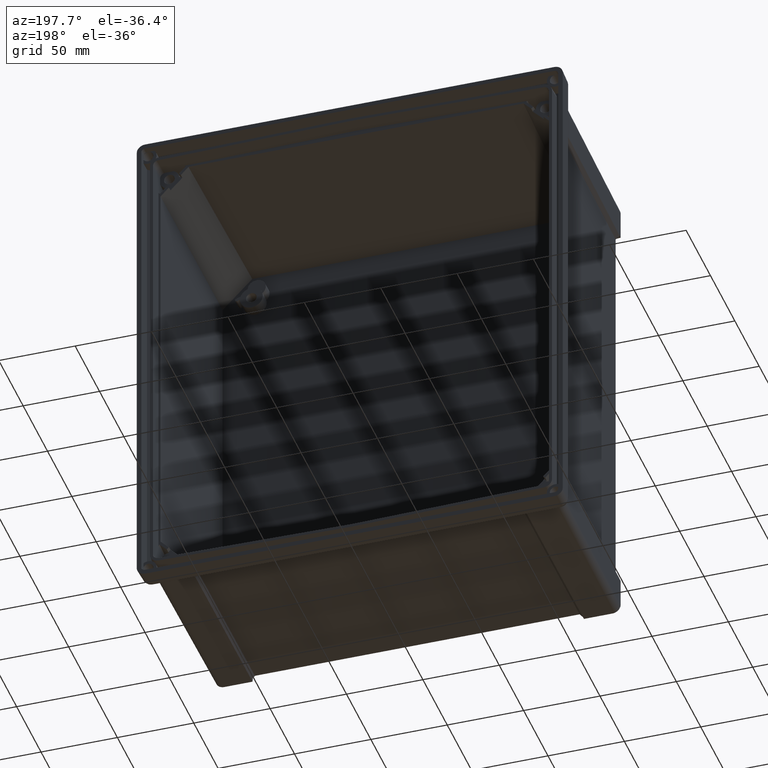
[diagram: clean part render]
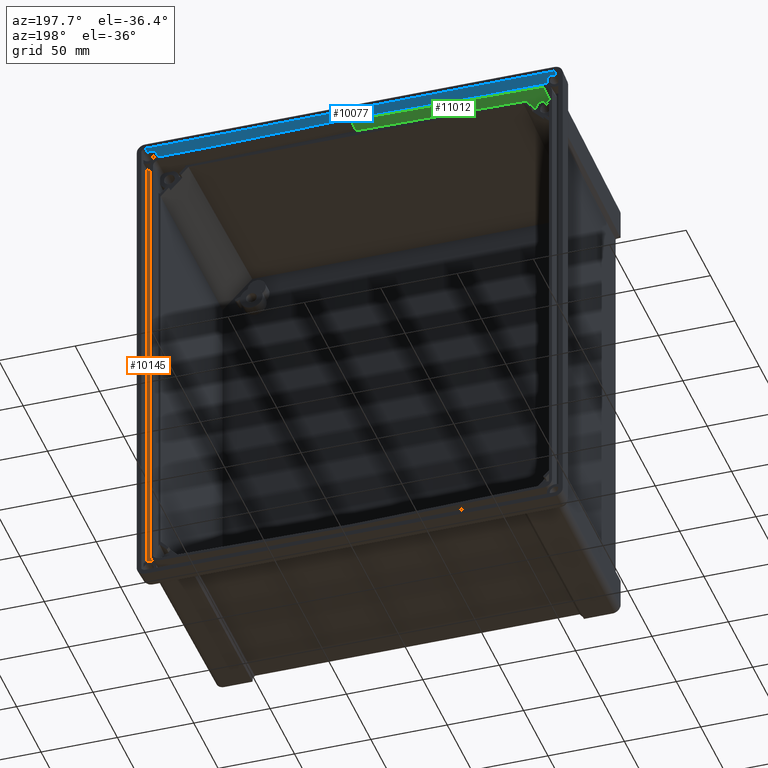
[diagram: same view with three faces highlighted in distinct colors, each labeled with its STEP entity id]
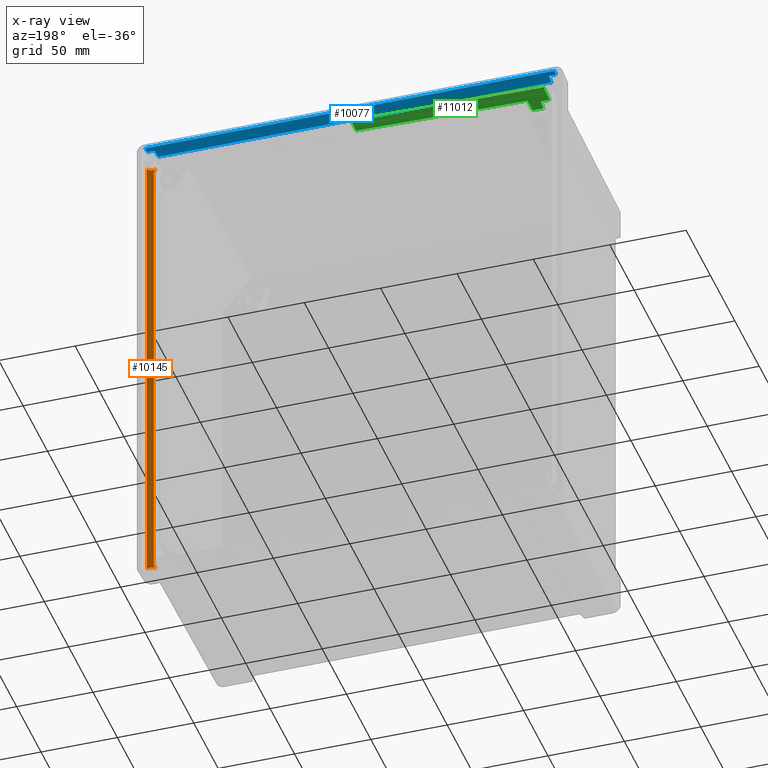
[diagram: x-ray of the same camera — body ghosted, the three highlighted faces saturated]
A machine part, auxiliary view with three faces highlighted in distinct colors.
The next image is the same camera in x-ray (body ghosted, the three faces saturated) — at least one of them is partly hidden behind the body in this view.
Their STEP definitions:

[orange] entity #10145 — the highlighted planar face has unit normal (-0.2079, 0.9781, 0).
#2936=DIRECTION('',(9.366707391512E-13,0.E0,-1.E0));
#2937=VECTOR('',#2936,3.093199070103E2);
#2938=CARTESIAN_POINT('',(1.360941774942E2,-1.052288663697E1,1.546599535051E2));
#2939=LINE('',#2938,#2937);
#3038=CARTESIAN_POINT('',(1.332499999998E2,-1.112743522689E1,1.538755901582E2));
#3039=CARTESIAN_POINT('',(1.329491776095E2,-1.119137699984E1,1.538744740504E2));
#3040=CARTESIAN_POINT('',(1.323418802507E2,-1.132046203698E1,1.539205545499E2));
#3041=CARTESIAN_POINT('',(1.314216868261E2,-1.151605518773E1,1.541436615417E2));
#3042=CARTESIAN_POINT('',(1.307863569804E2,-1.165109871567E1,1.544206904514E2));
#3043=CARTESIAN_POINT('',(1.304697275397E2,-1.171840038090E1,1.545989579891E2));
#3077=CARTESIAN_POINT('',(1.304697275397E2,-1.171840038090E1,1.545989579891E2));
#3079=DIRECTION('',(3.171837905269E-13,-4.137254880999E-12,-1.E0));
#3080=VECTOR('',#3079,3.017048743039E2);
#3081=CARTESIAN_POINT('',(1.319229755109E2,-1.140950298912E1,1.508524371519E2));
#3082=LINE('',#3081,#3080);
#3091=CARTESIAN_POINT('',(1.319229755110E2,-1.140950299037E1,
-1.508524371520E2));
#3092=CARTESIAN_POINT('',(1.319229755110E2,-1.140950299037E1,
-1.513157368230E2));
#3093=CARTESIAN_POINT('',(1.318116655605E2,-1.143316264816E1,
-1.522117758520E2));
#3094=CARTESIAN_POINT('',(1.313095384883E2,-1.153989305259E1,
-1.535110639774E2));
#3095=CARTESIAN_POINT('',(1.307851598199E2,-1.165135318074E1,
-1.542536331589E2));
#3096=CARTESIAN_POINT('',(1.304697275400E2,-1.171840038161E1,
-1.545989579892E2));
#3098=CARTESIAN_POINT('',(1.304697275400E2,-1.171840038161E1,
-1.545989579892E2));
#3099=CARTESIAN_POINT('',(1.307526327356E2,-1.165826702595E1,
-1.544396777515E2));
#3100=CARTESIAN_POINT('',(1.313363230711E2,-1.153419981363E1,
-1.541741881426E2));
#3101=CARTESIAN_POINT('',(1.322815708426E2,-1.133328119751E1,
-1.539277117665E2));
#3102=CARTESIAN_POINT('',(1.329233227406E2,-1.119687262188E1,
-1.538743781240E2));
#3103=CARTESIAN_POINT('',(1.332499999998E2,-1.112743522689E1,
-1.538755901582E2));
#3105=CARTESIAN_POINT('',(1.360941774942E2,-1.052288663697E1,1.546599535051E2));
#3106=CARTESIAN_POINT('',(1.358069983190E2,-1.058392845503E1,1.544899613237E2));
#3107=CARTESIAN_POINT('',(1.352128106350E2,-1.071022694624E1,1.542057104901E2));
#3108=CARTESIAN_POINT('',(1.342448122597E2,-1.091598135203E1,1.539381362741E2));
#3109=CARTESIAN_POINT('',(1.335859516668E2,-1.105602649566E1,1.538768366022E2));
#3110=CARTESIAN_POINT('',(1.332499999998E2,-1.112743522689E1,1.538755901582E2));
#3112=CARTESIAN_POINT('',(1.304697275397E2,-1.171840038090E1,1.545989579891E2));
#3113=CARTESIAN_POINT('',(1.307855659332E2,-1.165126685795E1,1.542531885590E2));
#3114=CARTESIAN_POINT('',(1.313103379443E2,-1.153972312315E1,1.535099004338E2));
#3115=CARTESIAN_POINT('',(1.318124160309E2,-1.143300313124E1,1.522087638216E2));
#3116=CARTESIAN_POINT('',(1.319229755109E2,-1.140950298913E1,1.513144336089E2));
#3117=CARTESIAN_POINT('',(1.319229755109E2,-1.140950298912E1,1.508524371519E2));
#3243=CARTESIAN_POINT('',(1.360941774945E2,-1.052288663697E1,
-1.546599535053E2));
#3250=CARTESIAN_POINT('',(1.332499999998E2,-1.112743522689E1,
-1.538755901582E2));
#3251=CARTESIAN_POINT('',(1.335570718479E2,-1.106216509067E1,
-1.538767294527E2));
#3252=CARTESIAN_POINT('',(1.341778721861E2,-1.093020990391E1,
-1.539267662754E2));
#3253=CARTESIAN_POINT('',(1.351758937890E2,-1.071807386407E1,
-1.541895987669E2));
#3254=CARTESIAN_POINT('',(1.357922195035E2,-1.058706978931E1,
-1.544812131855E2));
#3255=CARTESIAN_POINT('',(1.360941774945E2,-1.052288663697E1,
-1.546599535053E2));
#5077=VERTEX_POINT('',#3077);
#5078=VERTEX_POINT('',#3038);
#5112=VERTEX_POINT('',#3243);
#5113=VERTEX_POINT('',#3250);
#5393=VERTEX_POINT('',#3091);
#5394=VERTEX_POINT('',#3096);
#5395=CARTESIAN_POINT('',(1.319229755109E2,-1.140950298912E1,1.508524371519E2));
#5396=VERTEX_POINT('',#5395);
#5397=VERTEX_POINT('',#3105);
#10126=CARTESIAN_POINT('',(1.332819525177E2,-1.112064350860E1,0.E0));
#10127=DIRECTION('',(-2.079116908133E-1,9.781476007348E-1,0.E0));
#10128=DIRECTION('',(9.781476007348E-1,2.079116908133E-1,0.E0));
#10129=AXIS2_PLACEMENT_3D('',#10126,#10127,#10128);
#10130=PLANE('',#10129);
#10132=ORIENTED_EDGE('',*,*,#10131,.T.);
#10134=ORIENTED_EDGE('',*,*,#10133,.T.);
#10136=ORIENTED_EDGE('',*,*,#10135,.T.);
#10137=ORIENTED_EDGE('',*,*,#10006,.F.);
#10139=ORIENTED_EDGE('',*,*,#10138,.T.);
#10140=ORIENTED_EDGE('',*,*,#10089,.T.);
#10141=ORIENTED_EDGE('',*,*,#10104,.T.);
#10142=ORIENTED_EDGE('',*,*,#10117,.T.);
#10143=EDGE_LOOP('',(#10132,#10134,#10136,#10137,#10139,#10140,#10141,#10142));
#10144=FACE_OUTER_BOUND('',#10143,.F.);
#10145=ADVANCED_FACE('',(#10144),#10130,.T.);
#3044=B_SPLINE_CURVE_WITH_KNOTS('',3,(#3038,#3039,#3040,#3041,#3042,#3043),
.UNSPECIFIED.,.F.,.F.,(4,1,1,4),(0.E0,3.333333333333E-1,6.666666666667E-1,1.E0),
.UNSPECIFIED.);
#3097=B_SPLINE_CURVE_WITH_KNOTS('',3,(#3091,#3092,#3093,#3094,#3095,#3096),
.UNSPECIFIED.,.F.,.F.,(4,1,1,4),(0.E0,3.333333333333E-1,6.666666666667E-1,1.E0),
.UNSPECIFIED.);
#3104=B_SPLINE_CURVE_WITH_KNOTS('',3,(#3098,#3099,#3100,#3101,#3102,#3103),
.UNSPECIFIED.,.F.,.F.,(4,1,1,4),(0.E0,3.333333333333E-1,6.666666666667E-1,1.E0),
.UNSPECIFIED.);
#3111=B_SPLINE_CURVE_WITH_KNOTS('',3,(#3105,#3106,#3107,#3108,#3109,#3110),
.UNSPECIFIED.,.F.,.F.,(4,1,1,4),(0.E0,3.333333333333E-1,6.666666666667E-1,1.E0),
.UNSPECIFIED.);
#3118=B_SPLINE_CURVE_WITH_KNOTS('',3,(#3112,#3113,#3114,#3115,#3116,#3117),
.UNSPECIFIED.,.F.,.F.,(4,1,1,4),(0.E0,3.333333333333E-1,6.666666666667E-1,1.E0),
.UNSPECIFIED.);
#3256=B_SPLINE_CURVE_WITH_KNOTS('',3,(#3250,#3251,#3252,#3253,#3254,#3255),
.UNSPECIFIED.,.F.,.F.,(4,1,1,4),(0.E0,3.333333333333E-1,6.666666666667E-1,1.E0),
.UNSPECIFIED.);
#10006=EDGE_CURVE('',#5397,#5112,#2939,.T.);
#10089=EDGE_CURVE('',#5078,#5077,#3044,.T.);
#10104=EDGE_CURVE('',#5077,#5396,#3118,.T.);
#10117=EDGE_CURVE('',#5396,#5393,#3082,.T.);
#10131=EDGE_CURVE('',#5393,#5394,#3097,.T.);
#10133=EDGE_CURVE('',#5394,#5113,#3104,.T.);
#10135=EDGE_CURVE('',#5113,#5112,#3256,.T.);
#10138=EDGE_CURVE('',#5397,#5078,#3111,.T.);

[blue] entity #10077 — the highlighted planar face has unit normal (0, -0.0349, 0.9994).
#729=CARTESIAN_POINT('',(-1.287784281970E2,-1.052288663671E1,1.628941774939E2));
#762=DIRECTION('',(1.E0,-8.734373090909E-11,-5.411139274909E-11));
#763=VECTOR('',#762,4.712493322654E0);
#764=CARTESIAN_POINT('',(-1.338234846081E2,-4.000000000482E0,1.631219617147E2));
#765=LINE('',#764,#763);
#858=CARTESIAN_POINT('',(1.339631676742E2,-3.270968681098E-10,
1.632616448406E2));
#2952=CARTESIAN_POINT('',(1.338234846467E2,-4.E0,1.631219617148E2));
#2988=DIRECTION('',(3.487825977790E-2,9.987827656445E-1,3.487827470408E-2));
#2989=VECTOR('',#2988,4.004874871438E0);
#2990=CARTESIAN_POINT('',(1.338234846081E2,-4.000000000482E0,1.631219617147E2));
#2991=LINE('',#2990,#2989);
#2992=DIRECTION('',(-1.E0,0.E0,0.E0));
#2993=VECTOR('',#2992,2.679263353485E2);
#2994=CARTESIAN_POINT('',(1.339631676742E2,-3.270968681098E-10,
1.632616448406E2));
#2995=LINE('',#2994,#2993);
#2996=DIRECTION('',(3.487825977765E-2,-9.987827656445E-1,-3.487827470373E-2));
#2997=VECTOR('',#2996,4.004874871438E0);
#2998=CARTESIAN_POINT('',(-1.339631676742E2,-3.270381003044E-10,
1.632616448406E2));
#2999=LINE('',#2998,#2997);
#3000=CARTESIAN_POINT('',(-1.291109912854E2,-4.000000000894E0,
1.631219617144E2));
#3001=CARTESIAN_POINT('',(-1.290733587473E2,-4.700099878751E0,
1.630975136880E2));
#3002=CARTESIAN_POINT('',(-1.289985683814E2,-6.116656028573E0,
1.630480464570E2));
#3003=CARTESIAN_POINT('',(-1.288881064219E2,-8.283427206757E0,
1.629723811405E2));
#3004=CARTESIAN_POINT('',(-1.288148760788E2,-9.770156290086E0,
1.629204634168E2));
#3005=CARTESIAN_POINT('',(-1.287784281970E2,-1.052288663671E1,
1.628941774939E2));
#3007=DIRECTION('',(1.E0,0.E0,-1.334587471924E-12));
#3008=VECTOR('',#3007,2.575568563938E2);
#3009=CARTESIAN_POINT('',(-1.287784281970E2,-1.052288663671E1,
1.628941774939E2));
#3010=LINE('',#3009,#3008);
#3011=DIRECTION('',(1.E0,8.734844273246E-11,1.214912946359E-10));
#3012=VECTOR('',#3011,4.712493322933E0);
#3013=CARTESIAN_POINT('',(1.291109912852E2,-4.000000000894E0,1.631219617141E2));
#3014=LINE('',#3013,#3012);
#3015=CARTESIAN_POINT('',(1.287784281967E2,-1.052288663671E1,1.628941774935E2));
#3016=CARTESIAN_POINT('',(1.288147905747E2,-9.771922136018E0,1.629204017517E2));
#3017=CARTESIAN_POINT('',(1.288879033806E2,-8.287403012781E0,1.629722423024E2));
#3018=CARTESIAN_POINT('',(1.289989976938E2,-6.108321728257E0,1.630483374973E2));
#3019=CARTESIAN_POINT('',(1.290735540379E2,-4.696466768790E0,1.630976405587E2));
#3020=CARTESIAN_POINT('',(1.291109912852E2,-4.000000000894E0,1.631219617141E2));
#5071=CARTESIAN_POINT('',(1.291109912618E2,-4.E0,1.631219617151E2));
#5073=VERTEX_POINT('',#5071);
#5074=VERTEX_POINT('',#3015);
#5390=VERTEX_POINT('',#2952);
#5398=VERTEX_POINT('',#729);
#5793=VERTEX_POINT('',#858);
#5794=CARTESIAN_POINT('',(-1.339631676742E2,-3.270381003044E-10,
1.632616448406E2));
#5795=VERTEX_POINT('',#5794);
#5877=VERTEX_POINT('',#3000);
#5878=CARTESIAN_POINT('',(-1.338234846081E2,-4.000000000482E0,
1.631219617147E2));
#5879=VERTEX_POINT('',#5878);
#10061=CARTESIAN_POINT('',(0.E0,-5.261443318500E0,1.630779111430E2));
#10062=DIRECTION('',(0.E0,-3.489949664194E-2,9.993908270212E-1));
#10063=DIRECTION('',(0.E0,-9.993908270212E-1,-3.489949664194E-2));
#10064=AXIS2_PLACEMENT_3D('',#10061,#10062,#10063);
#10065=PLANE('',#10064);
#10066=ORIENTED_EDGE('',*,*,#10052,.T.);
#10067=ORIENTED_EDGE('',*,*,#6901,.T.);
#10068=ORIENTED_EDGE('',*,*,#6868,.T.);
#10069=ORIENTED_EDGE('',*,*,#6819,.T.);
#10070=ORIENTED_EDGE('',*,*,#6800,.T.);
#10071=ORIENTED_EDGE('',*,*,#6780,.T.);
#10073=ORIENTED_EDGE('',*,*,#10072,.T.);
#10074=ORIENTED_EDGE('',*,*,#10030,.T.);
#10075=EDGE_LOOP('',(#10066,#10067,#10068,#10069,#10070,#10071,#10073,#10074));
#10076=FACE_OUTER_BOUND('',#10075,.F.);
#10077=ADVANCED_FACE('',(#10076),#10065,.F.);
#3006=B_SPLINE_CURVE_WITH_KNOTS('',3,(#3000,#3001,#3002,#3003,#3004,#3005),
.UNSPECIFIED.,.F.,.F.,(4,1,1,4),(0.E0,3.333333333333E-1,6.666666666667E-1,1.E0),
.UNSPECIFIED.);
#3021=B_SPLINE_CURVE_WITH_KNOTS('',3,(#3015,#3016,#3017,#3018,#3019,#3020),
.UNSPECIFIED.,.F.,.F.,(4,1,1,4),(0.E0,3.333333333333E-1,6.666666666667E-1,1.E0),
.UNSPECIFIED.);
#6780=EDGE_CURVE('',#5398,#5074,#3010,.T.);
#6800=EDGE_CURVE('',#5877,#5398,#3006,.T.);
#6819=EDGE_CURVE('',#5879,#5877,#765,.T.);
#6868=EDGE_CURVE('',#5795,#5879,#2999,.T.);
#6901=EDGE_CURVE('',#5793,#5795,#2995,.T.);
#10030=EDGE_CURVE('',#5073,#5390,#3014,.T.);
#10052=EDGE_CURVE('',#5390,#5793,#2991,.T.);
#10072=EDGE_CURVE('',#5074,#5073,#3021,.T.);

[green] entity #11012 — the highlighted planar face has unit normal (-0.0174, -0.0349, 0.9992).
#425=DIRECTION('',(9.998476951565E-1,-3.198822138900E-11,1.745240643256E-2));
#426=VECTOR('',#425,1.122139639442E2);
#427=CARTESIAN_POINT('',(-1.121968732140E2,-1.284933532463E1,1.539602855411E2));
#428=LINE('',#427,#426);
#614=DIRECTION('',(-9.998476951570E-1,1.297201416549E-11,-1.745240640113E-2));
#615=VECTOR('',#614,1.262291731914E2);
#616=CARTESIAN_POINT('',(0.E0,-2.500000003658E0,1.562801510406E2));
#617=LINE('',#616,#615);
#3611=DIRECTION('',(-3.661908964200E-3,9.993861685360E-1,3.484073136049E-2));
#3612=VECTOR('',#3611,1.015689930081E1);
#3613=CARTESIAN_POINT('',(-1.121596795734E2,-2.300000000107E1,
1.536064117411E2));
#3614=LINE('',#3613,#3612);
#3615=DIRECTION('',(-9.998476951525E-1,-4.633383246145E-10,-1.745240666252E-2));
#3616=VECTOR('',#3615,5.466605162616E0);
#3617=CARTESIAN_POINT('',(-1.202780062747E2,-1.584933531856E1,
1.537144505715E2));
#3618=LINE('',#3617,#3616);
#3619=DIRECTION('',(0.E0,-9.993906416278E-1,-3.490480521053E-2));
#3620=VECTOR('',#3619,1.035564562392E1);
#3621=CARTESIAN_POINT('',(0.E0,-2.500000003658E0,1.562801510406E2));
#3622=LINE('',#3621,#3620);
#3623=DIRECTION('',(-3.487898821153E-2,9.988036078701E-1,3.427548813679E-2));
#3624=VECTOR('',#3623,1.336532548930E1);
#3625=CARTESIAN_POINT('',(-1.257437788468E2,-1.584933532109E1,
1.536190451551E2));
#3626=LINE('',#3625,#3624);
#3627=CARTESIAN_POINT('',(-1.202780062747E2,-1.584933531856E1,
1.537144505715E2));
#3628=CARTESIAN_POINT('',(-1.201702182496E2,-1.658832074882E1,
1.536905221476E2));
#3629=CARTESIAN_POINT('',(-1.199609096532E2,-1.810331422107E1,
1.536412628470E2));
#3630=CARTESIAN_POINT('',(-1.196628023210E2,-2.046917245754E1,
1.535638361542E2));
#3631=CARTESIAN_POINT('',(-1.194684570476E2,-2.214230865531E1,
1.535087923604E2));
#3632=CARTESIAN_POINT('',(-1.193724764257E2,-2.299999999736E1,
1.534805119043E2));
#3672=DIRECTION('',(9.998476951579E-1,-5.140857026665E-10,1.745240634845E-2));
#3673=VECTOR('',#3672,7.213895563547E0);
#3674=CARTESIAN_POINT('',(-1.193724764257E2,-2.299999999736E1,
1.534805119043E2));
#3675=LINE('',#3674,#3673);
#3689=CARTESIAN_POINT('',(-1.262099478770E2,-2.500000002020E0,
1.540771482103E2));
#5176=VERTEX_POINT('',#3689);
#5178=CARTESIAN_POINT('',(-1.257437788468E2,-1.584933532109E1,
1.536190451551E2));
#5179=VERTEX_POINT('',#5178);
#5360=CARTESIAN_POINT('',(0.E0,-1.284933532822E1,1.559186892472E2));
#5361=VERTEX_POINT('',#5360);
#5362=CARTESIAN_POINT('',(-1.121968732140E2,-1.284933532463E1,
1.539602855411E2));
#5363=VERTEX_POINT('',#5362);
#5544=CARTESIAN_POINT('',(-1.202780062705E2,-1.584933532200E1,
1.537144505711E2));
#5545=VERTEX_POINT('',#5544);
#5603=CARTESIAN_POINT('',(-1.193724764354E2,-2.299999999729E1,
1.534805119041E2));
#5605=VERTEX_POINT('',#5603);
#5613=CARTESIAN_POINT('',(0.E0,-2.500000003658E0,1.562801510406E2));
#5614=VERTEX_POINT('',#5613);
#5657=CARTESIAN_POINT('',(-1.121596795734E2,-2.300000000107E1,
1.536064117411E2));
#5658=VERTEX_POINT('',#5657);
#10994=CARTESIAN_POINT('',(-6.310497393051E1,-1.274791835110E1,
1.548207299285E2));
#10995=DIRECTION('',(-1.744177490346E-2,-3.489949669672E-2,9.992386149557E-1));
#10996=DIRECTION('',(0.E0,9.993906415865E-1,3.490480639234E-2));
#10997=AXIS2_PLACEMENT_3D('',#10994,#10995,#10996);
#10998=PLANE('',#10997);
#10999=ORIENTED_EDGE('',*,*,#10596,.F.);
#11001=ORIENTED_EDGE('',*,*,#11000,.T.);
#11003=ORIENTED_EDGE('',*,*,#11002,.T.);
#11004=ORIENTED_EDGE('',*,*,#10986,.T.);
#11005=ORIENTED_EDGE('',*,*,#6478,.T.);
#11006=ORIENTED_EDGE('',*,*,#6620,.F.);
#11007=ORIENTED_EDGE('',*,*,#6666,.T.);
#11009=ORIENTED_EDGE('',*,*,#11008,.F.);
#11010=EDGE_LOOP('',(#10999,#11001,#11003,#11004,#11005,#11006,#11007,#11009));
#11011=FACE_OUTER_BOUND('',#11010,.F.);
#11012=ADVANCED_FACE('',(#11011),#10998,.F.);
#3633=B_SPLINE_CURVE_WITH_KNOTS('',3,(#3627,#3628,#3629,#3630,#3631,#3632),
.UNSPECIFIED.,.F.,.F.,(4,1,1,4),(0.E0,3.333333333333E-1,6.666666666667E-1,1.E0),
.UNSPECIFIED.);
#6478=EDGE_CURVE('',#5363,#5361,#428,.T.);
#6620=EDGE_CURVE('',#5614,#5361,#3622,.T.);
#6666=EDGE_CURVE('',#5614,#5176,#617,.T.);
#10596=EDGE_CURVE('',#5545,#5179,#3618,.T.);
#10986=EDGE_CURVE('',#5658,#5363,#3614,.T.);
#11000=EDGE_CURVE('',#5545,#5605,#3633,.T.);
#11002=EDGE_CURVE('',#5605,#5658,#3675,.T.);
#11008=EDGE_CURVE('',#5179,#5176,#3626,.T.);